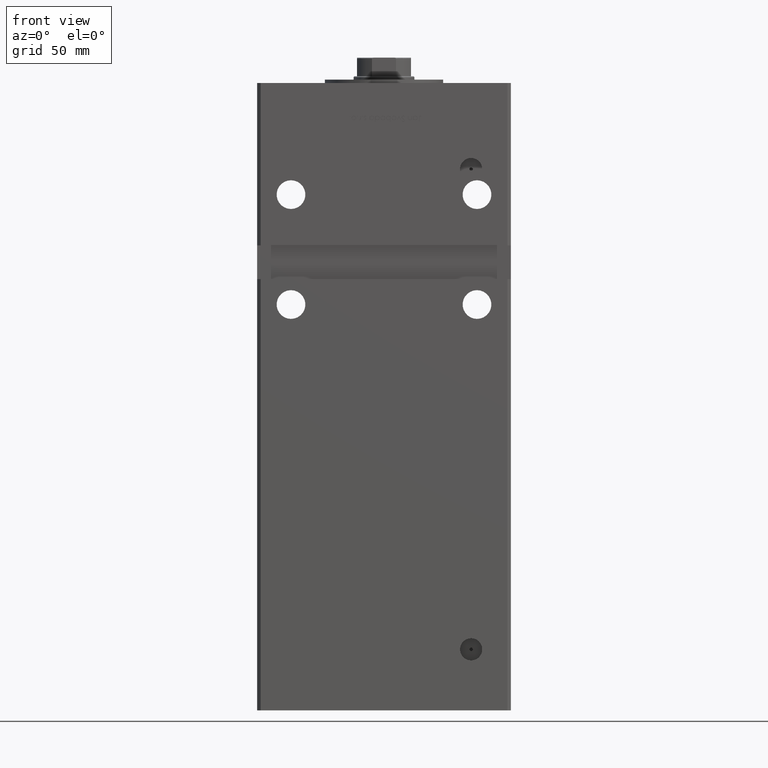
[diagram: clean part render]
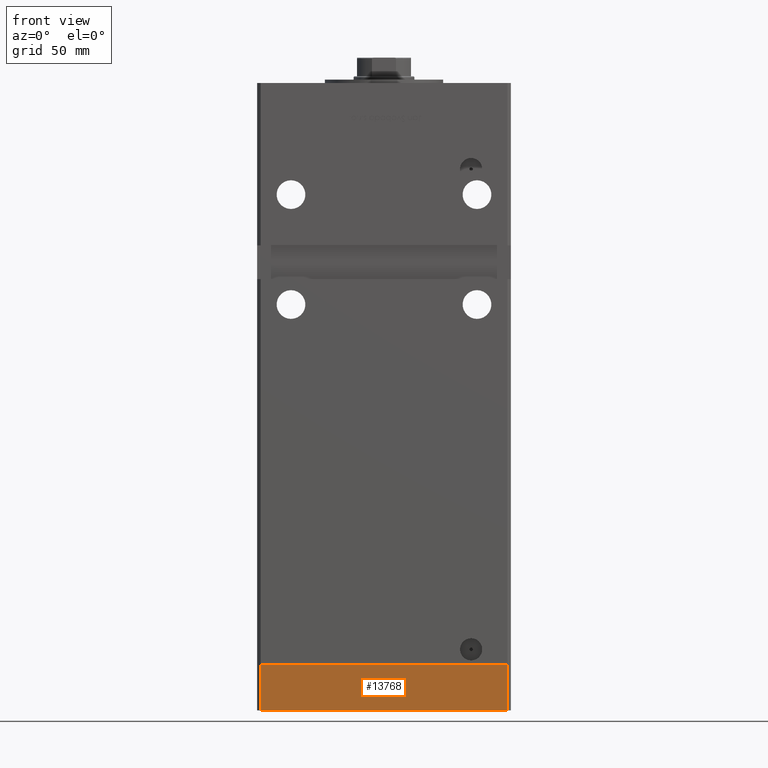
[diagram: same view with one face highlighted and labeled with its STEP entity id]
A machine part, front view. The second image highlights one B-rep face of the part: STEP entity #13768.
In plain terms, the highlighted planar face has unit normal (0, -1, -0).
Its self-contained STEP definition (entity closure, byte-faithful):
#3140 = EDGE_LOOP ( 'NONE', ( #46713, #30082, #9734, #30077 ) ) ;
#3897 = LINE ( 'NONE', #20240, #5242 ) ;
#5224 = PLANE ( 'NONE',  #26267 ) ;
#5242 = VECTOR ( 'NONE', #36594, 1000.000000000000000 ) ;
#7406 = VECTOR ( 'NONE', #38835, 1000.000000000000000 ) ;
#7563 = EDGE_CURVE ( 'NONE', #26190, #15202, #47133, .T. ) ;
#9734 = ORIENTED_EDGE ( 'NONE', *, *, #7563, .T. ) ;
#9764 = DIRECTION ( 'NONE',  ( 1.000000000000000000, 9.505334114941407284E-17, 0.000000000000000000 ) ) ;
#13768 = ADVANCED_FACE ( 'NONE', ( #41956 ), #5224, .T. ) ;
#15202 = VERTEX_POINT ( 'NONE', #48247 ) ;
#20240 = CARTESIAN_POINT ( 'NONE',  ( -73.00000000000001421, -62.50000000000002842, 0.000000000000000000 ) ) ;
#20756 = VERTEX_POINT ( 'NONE', #25059 ) ;
#21048 = EDGE_CURVE ( 'NONE', #26190, #45708, #41811, .T. ) ;
#21826 = CARTESIAN_POINT ( 'NONE',  ( -73.00000000000001421, -62.50000000000002842, -27.00000000000000000 ) ) ;
#25059 = CARTESIAN_POINT ( 'NONE',  ( 73.00000000000001421, -62.50000000000001421, 0.000000000000000000 ) ) ;
#25698 = CARTESIAN_POINT ( 'NONE',  ( -73.00000000000001421, -62.50000000000002842, -27.00000000000000000 ) ) ;
#26190 = VERTEX_POINT ( 'NONE', #34312 ) ;
#26221 = CARTESIAN_POINT ( 'NONE',  ( -73.00000000000001421, -62.50000000000002842, -27.00000000000000000 ) ) ;
#26267 = AXIS2_PLACEMENT_3D ( 'NONE', #21826, #30127, #9764 ) ;
#27420 = VECTOR ( 'NONE', #28005, 1000.000000000000000 ) ;
#28005 = DIRECTION ( 'NONE',  ( 0.000000000000000000, 0.000000000000000000, 1.000000000000000000 ) ) ;
#30035 = CARTESIAN_POINT ( 'NONE',  ( -73.00000000000001421, -62.50000000000002842, 0.000000000000000000 ) ) ;
#30077 = ORIENTED_EDGE ( 'NONE', *, *, #39006, .T. ) ;
#30082 = ORIENTED_EDGE ( 'NONE', *, *, #21048, .F. ) ;
#30127 = DIRECTION ( 'NONE',  ( 9.505334114941407284E-17, -1.000000000000000000, 0.000000000000000000 ) ) ;
#34312 = CARTESIAN_POINT ( 'NONE',  ( -73.00000000000001421, -62.50000000000002842, -27.00000000000000000 ) ) ;
#35942 = VECTOR ( 'NONE', #42323, 1000.000000000000000 ) ;
#36594 = DIRECTION ( 'NONE',  ( 1.000000000000000000, 9.505334114941407284E-17, 0.000000000000000000 ) ) ;
#38530 = LINE ( 'NONE', #42820, #27420 ) ;
#38835 = DIRECTION ( 'NONE',  ( 1.000000000000000000, 9.505334114941407284E-17, 0.000000000000000000 ) ) ;
#39006 = EDGE_CURVE ( 'NONE', #15202, #20756, #38530, .T. ) ;
#40344 = EDGE_CURVE ( 'NONE', #45708, #20756, #3897, .T. ) ;
#41811 = LINE ( 'NONE', #25698, #35942 ) ;
#41956 = FACE_OUTER_BOUND ( 'NONE', #3140, .T. ) ;
#42323 = DIRECTION ( 'NONE',  ( 0.000000000000000000, 0.000000000000000000, 1.000000000000000000 ) ) ;
#42820 = CARTESIAN_POINT ( 'NONE',  ( 73.00000000000001421, -62.50000000000001421, -27.00000000000000000 ) ) ;
#45708 = VERTEX_POINT ( 'NONE', #30035 ) ;
#46713 = ORIENTED_EDGE ( 'NONE', *, *, #40344, .F. ) ;
#47133 = LINE ( 'NONE', #26221, #7406 ) ;
#48247 = CARTESIAN_POINT ( 'NONE',  ( 73.00000000000001421, -62.50000000000001421, -27.00000000000000000 ) ) ;